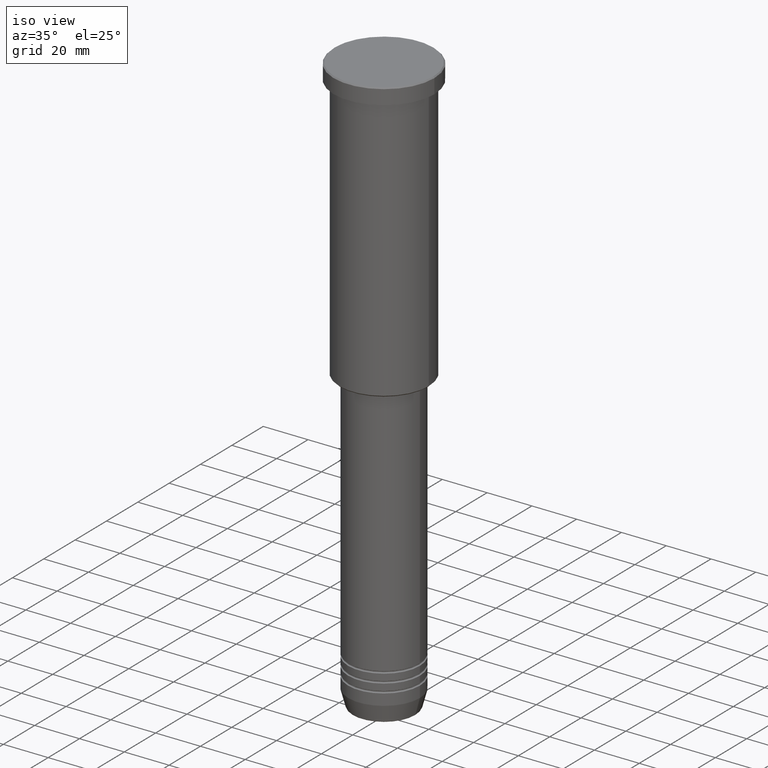
[diagram: clean part render]
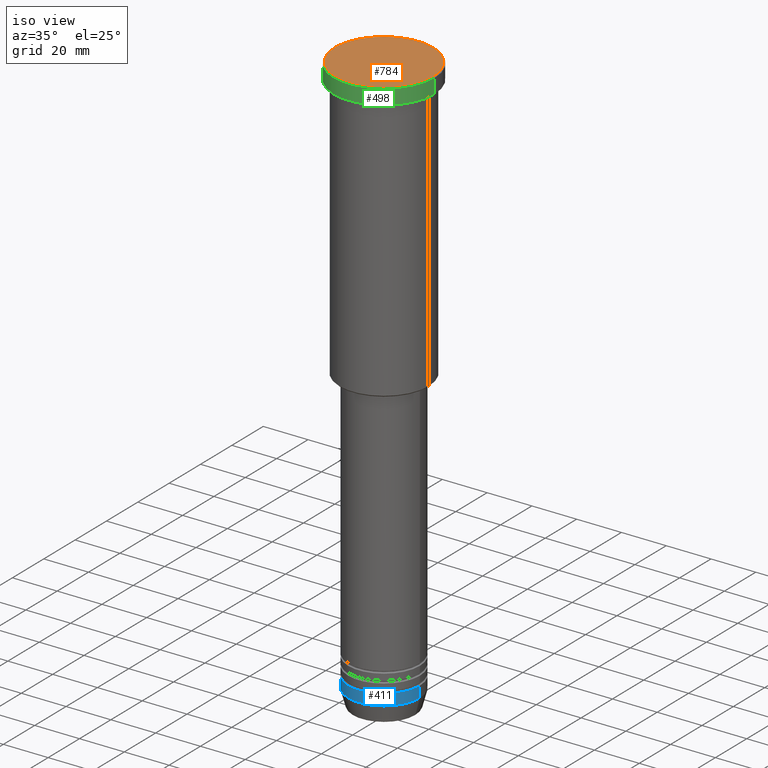
[diagram: same view with three faces highlighted in distinct colors, each labeled with its STEP entity id]
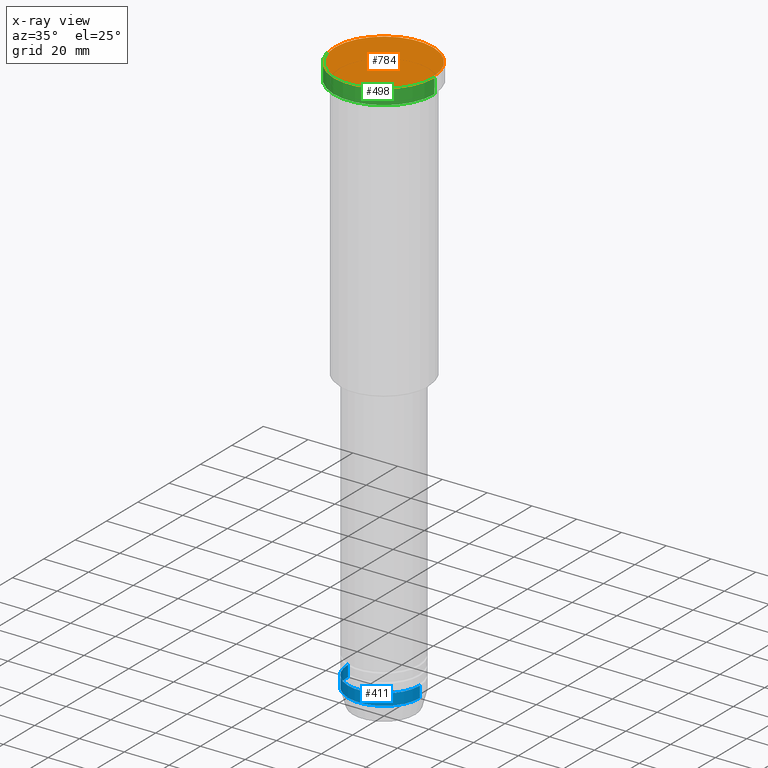
[diagram: x-ray of the same camera — body ghosted, the three highlighted faces saturated]
A machine part, iso view with three faces highlighted in distinct colors.
The next image is the same camera in x-ray (body ghosted, the three faces saturated) — at least one of them is partly hidden behind the body in this view.
Their STEP definitions:

[orange] entity #784 — the highlighted planar face has unit normal (0, -0, 1).
#24 = CARTESIAN_POINT ( 'NONE',  ( -21.99999999999990763, 0.000000000000000000, 0.000000000000000000 ) ) ;
#183 = CIRCLE ( 'NONE', #764, 21.99999999999990763 ) ;
#189 = AXIS2_PLACEMENT_3D ( 'NONE', #209, #668, #1069 ) ;
#209 = CARTESIAN_POINT ( 'NONE',  ( 0.000000000000000000, 0.000000000000000000, 0.000000000000000000 ) ) ;
#250 = FACE_OUTER_BOUND ( 'NONE', #606, .T. ) ;
#420 = VERTEX_POINT ( 'NONE', #1105 ) ;
#421 = DIRECTION ( 'NONE',  ( 1.000000000000000000, 0.000000000000000000, 0.000000000000000000 ) ) ;
#512 = DIRECTION ( 'NONE',  ( 0.000000000000000000, -0.000000000000000000, 1.000000000000000000 ) ) ;
#544 = CIRCLE ( 'NONE', #189, 21.99999999999990763 ) ;
#572 = ORIENTED_EDGE ( 'NONE', *, *, #723, .T. ) ;
#606 = EDGE_LOOP ( 'NONE', ( #647, #572 ) ) ;
#647 = ORIENTED_EDGE ( 'NONE', *, *, #1141, .T. ) ;
#668 = DIRECTION ( 'NONE',  ( -0.000000000000000000, -0.000000000000000000, 1.000000000000000000 ) ) ;
#711 = VERTEX_POINT ( 'NONE', #24 ) ;
#723 = EDGE_CURVE ( 'NONE', #420, #711, #544, .T. ) ;
#735 = DIRECTION ( 'NONE',  ( 1.000000000000000000, 0.000000000000000000, 0.000000000000000000 ) ) ;
#764 = AXIS2_PLACEMENT_3D ( 'NONE', #865, #1085, #735 ) ;
#784 = ADVANCED_FACE ( 'NONE', ( #250 ), #956, .T. ) ;
#787 = CARTESIAN_POINT ( 'NONE',  ( 0.000000000000000000, 0.000000000000000000, 0.000000000000000000 ) ) ;
#865 = CARTESIAN_POINT ( 'NONE',  ( 0.000000000000000000, 0.000000000000000000, 0.000000000000000000 ) ) ;
#956 = PLANE ( 'NONE',  #1060 ) ;
#1060 = AXIS2_PLACEMENT_3D ( 'NONE', #787, #512, #421 ) ;
#1069 = DIRECTION ( 'NONE',  ( 1.000000000000000000, 0.000000000000000000, 0.000000000000000000 ) ) ;
#1085 = DIRECTION ( 'NONE',  ( -0.000000000000000000, -0.000000000000000000, 1.000000000000000000 ) ) ;
#1105 = CARTESIAN_POINT ( 'NONE',  ( 21.99999999999990763, 2.724839128102855074E-15, 0.000000000000000000 ) ) ;
#1141 = EDGE_CURVE ( 'NONE', #711, #420, #183, .T. ) ;

[blue] entity #411 — the highlighted cylindrical surface (partial cylindrical patch) has radius 16 mm, axis along (-0, -0, 1).
#10 = VERTEX_POINT ( 'NONE', #210 ) ;
#34 = AXIS2_PLACEMENT_3D ( 'NONE', #931, #557, #373 ) ;
#39 = DIRECTION ( 'NONE',  ( 1.000000000000000000, 0.000000000000000000, 0.000000000000000000 ) ) ;
#62 = VERTEX_POINT ( 'NONE', #881 ) ;
#76 = ORIENTED_EDGE ( 'NONE', *, *, #455, .F. ) ;
#123 = ORIENTED_EDGE ( 'NONE', *, *, #580, .T. ) ;
#152 = ORIENTED_EDGE ( 'NONE', *, *, #612, .T. ) ;
#182 = ORIENTED_EDGE ( 'NONE', *, *, #744, .F. ) ;
#184 = EDGE_LOOP ( 'NONE', ( #76, #123, #152, #182 ) ) ;
#210 = CARTESIAN_POINT ( 'NONE',  ( 16.00000000000000000, 0.000000000000000000, -247.5000000000000000 ) ) ;
#212 = DIRECTION ( 'NONE',  ( -0.000000000000000000, -0.000000000000000000, 1.000000000000000000 ) ) ;
#225 = LINE ( 'NONE', #492, #898 ) ;
#362 = DIRECTION ( 'NONE',  ( -0.000000000000000000, -0.000000000000000000, 1.000000000000000000 ) ) ;
#373 = DIRECTION ( 'NONE',  ( 1.000000000000000000, 0.000000000000000000, 0.000000000000000000 ) ) ;
#400 = CARTESIAN_POINT ( 'NONE',  ( 16.00000000000000000, 0.000000000000000000, -252.5000000000000000 ) ) ;
#411 = ADVANCED_FACE ( 'NONE', ( #814 ), #916, .T. ) ;
#422 = AXIS2_PLACEMENT_3D ( 'NONE', #546, #212, #39 ) ;
#455 = EDGE_CURVE ( 'NONE', #811, #62, #808, .T. ) ;
#492 = CARTESIAN_POINT ( 'NONE',  ( 16.00000000000000000, 0.000000000000000000, 0.000000000000000000 ) ) ;
#517 = AXIS2_PLACEMENT_3D ( 'NONE', #874, #961, #868 ) ;
#546 = CARTESIAN_POINT ( 'NONE',  ( 0.000000000000000000, 0.000000000000000000, -252.5000000000000000 ) ) ;
#557 = DIRECTION ( 'NONE',  ( -0.000000000000000000, -0.000000000000000000, 1.000000000000000000 ) ) ;
#580 = EDGE_CURVE ( 'NONE', #811, #998, #1161, .T. ) ;
#581 = VECTOR ( 'NONE', #362, 1000.000000000000000 ) ;
#590 = CARTESIAN_POINT ( 'NONE',  ( -16.00000000000000000, 1.959434878635765131E-15, -252.5000000000000000 ) ) ;
#612 = EDGE_CURVE ( 'NONE', #998, #10, #225, .T. ) ;
#744 = EDGE_CURVE ( 'NONE', #62, #10, #879, .T. ) ;
#795 = CARTESIAN_POINT ( 'NONE',  ( -16.00000000000000000, 1.959434878635765131E-15, 0.000000000000000000 ) ) ;
#808 = LINE ( 'NONE', #795, #581 ) ;
#811 = VERTEX_POINT ( 'NONE', #590 ) ;
#814 = FACE_OUTER_BOUND ( 'NONE', #184, .T. ) ;
#831 = DIRECTION ( 'NONE',  ( -0.000000000000000000, -0.000000000000000000, 1.000000000000000000 ) ) ;
#868 = DIRECTION ( 'NONE',  ( 1.000000000000000000, 0.000000000000000000, 0.000000000000000000 ) ) ;
#874 = CARTESIAN_POINT ( 'NONE',  ( 0.000000000000000000, 0.000000000000000000, -247.5000000000000000 ) ) ;
#879 = CIRCLE ( 'NONE', #517, 16.00000000000000000 ) ;
#881 = CARTESIAN_POINT ( 'NONE',  ( -16.00000000000000000, 1.959434878635765131E-15, -247.5000000000000000 ) ) ;
#898 = VECTOR ( 'NONE', #831, 1000.000000000000000 ) ;
#916 = CYLINDRICAL_SURFACE ( 'NONE', #34, 16.00000000000000000 ) ;
#931 = CARTESIAN_POINT ( 'NONE',  ( 0.000000000000000000, 0.000000000000000000, 0.000000000000000000 ) ) ;
#961 = DIRECTION ( 'NONE',  ( -0.000000000000000000, -0.000000000000000000, 1.000000000000000000 ) ) ;
#998 = VERTEX_POINT ( 'NONE', #400 ) ;
#1161 = CIRCLE ( 'NONE', #422, 16.00000000000000000 ) ;

[green] entity #498 — the highlighted cylindrical surface (partial cylindrical patch) has radius 22.5 mm, axis along (-0, -0, 1).
#31 = VECTOR ( 'NONE', #605, 1000.000000000000000 ) ;
#68 = VECTOR ( 'NONE', #452, 1000.000000000000000 ) ;
#79 = EDGE_CURVE ( 'NONE', #403, #309, #950, .T. ) ;
#81 = DIRECTION ( 'NONE',  ( -0.000000000000000000, -0.000000000000000000, 1.000000000000000000 ) ) ;
#103 = FACE_OUTER_BOUND ( 'NONE', #743, .T. ) ;
#145 = CARTESIAN_POINT ( 'NONE',  ( 0.000000000000000000, 0.000000000000000000, -6.999999999999995559 ) ) ;
#220 = EDGE_CURVE ( 'NONE', #263, #554, #1002, .T. ) ;
#263 = VERTEX_POINT ( 'NONE', #1099 ) ;
#279 = AXIS2_PLACEMENT_3D ( 'NONE', #145, #708, #318 ) ;
#302 = CARTESIAN_POINT ( 'NONE',  ( -22.50000000000000000, 2.755455298081544778E-15, -6.999999999999995559 ) ) ;
#309 = VERTEX_POINT ( 'NONE', #891 ) ;
#318 = DIRECTION ( 'NONE',  ( 1.000000000000000000, 0.000000000000000000, 0.000000000000000000 ) ) ;
#353 = CYLINDRICAL_SURFACE ( 'NONE', #369, 22.50000000000000000 ) ;
#369 = AXIS2_PLACEMENT_3D ( 'NONE', #555, #81, #726 ) ;
#371 = CIRCLE ( 'NONE', #1033, 22.50000000000000000 ) ;
#390 = CIRCLE ( 'NONE', #279, 22.50000000000000000 ) ;
#403 = VERTEX_POINT ( 'NONE', #302 ) ;
#452 = DIRECTION ( 'NONE',  ( -0.000000000000000000, -0.000000000000000000, 1.000000000000000000 ) ) ;
#498 = ADVANCED_FACE ( 'NONE', ( #103 ), #353, .T. ) ;
#507 = DIRECTION ( 'NONE',  ( 1.000000000000000000, 0.000000000000000000, 0.000000000000000000 ) ) ;
#524 = ORIENTED_EDGE ( 'NONE', *, *, #760, .T. ) ;
#529 = ORIENTED_EDGE ( 'NONE', *, *, #804, .T. ) ;
#548 = CARTESIAN_POINT ( 'NONE',  ( 22.50000000000000000, 0.000000000000000000, 0.000000000000000000 ) ) ;
#554 = VERTEX_POINT ( 'NONE', #803 ) ;
#555 = CARTESIAN_POINT ( 'NONE',  ( 0.000000000000000000, 0.000000000000000000, 0.000000000000000000 ) ) ;
#605 = DIRECTION ( 'NONE',  ( -0.000000000000000000, -0.000000000000000000, 1.000000000000000000 ) ) ;
#687 = CARTESIAN_POINT ( 'NONE',  ( -22.50000000000000000, 2.755455298081544778E-15, 0.000000000000000000 ) ) ;
#708 = DIRECTION ( 'NONE',  ( -0.000000000000000000, -0.000000000000000000, 1.000000000000000000 ) ) ;
#726 = DIRECTION ( 'NONE',  ( 1.000000000000000000, 0.000000000000000000, 0.000000000000000000 ) ) ;
#743 = EDGE_LOOP ( 'NONE', ( #1122, #524, #867, #529 ) ) ;
#760 = EDGE_CURVE ( 'NONE', #403, #263, #390, .T. ) ;
#772 = CARTESIAN_POINT ( 'NONE',  ( 0.000000000000000000, 0.000000000000000000, -0.5000000000001045830 ) ) ;
#803 = CARTESIAN_POINT ( 'NONE',  ( 22.50000000000000000, 0.000000000000000000, -0.5000000000001045830 ) ) ;
#804 = EDGE_CURVE ( 'NONE', #554, #309, #371, .T. ) ;
#867 = ORIENTED_EDGE ( 'NONE', *, *, #220, .T. ) ;
#891 = CARTESIAN_POINT ( 'NONE',  ( -22.50000000000000000, 2.755455298081544778E-15, -0.5000000000001045830 ) ) ;
#950 = LINE ( 'NONE', #687, #31 ) ;
#1002 = LINE ( 'NONE', #548, #68 ) ;
#1033 = AXIS2_PLACEMENT_3D ( 'NONE', #772, #1165, #507 ) ;
#1099 = CARTESIAN_POINT ( 'NONE',  ( 22.50000000000000000, 0.000000000000000000, -6.999999999999995559 ) ) ;
#1122 = ORIENTED_EDGE ( 'NONE', *, *, #79, .F. ) ;
#1165 = DIRECTION ( 'NONE',  ( 0.000000000000000000, 0.000000000000000000, -1.000000000000000000 ) ) ;